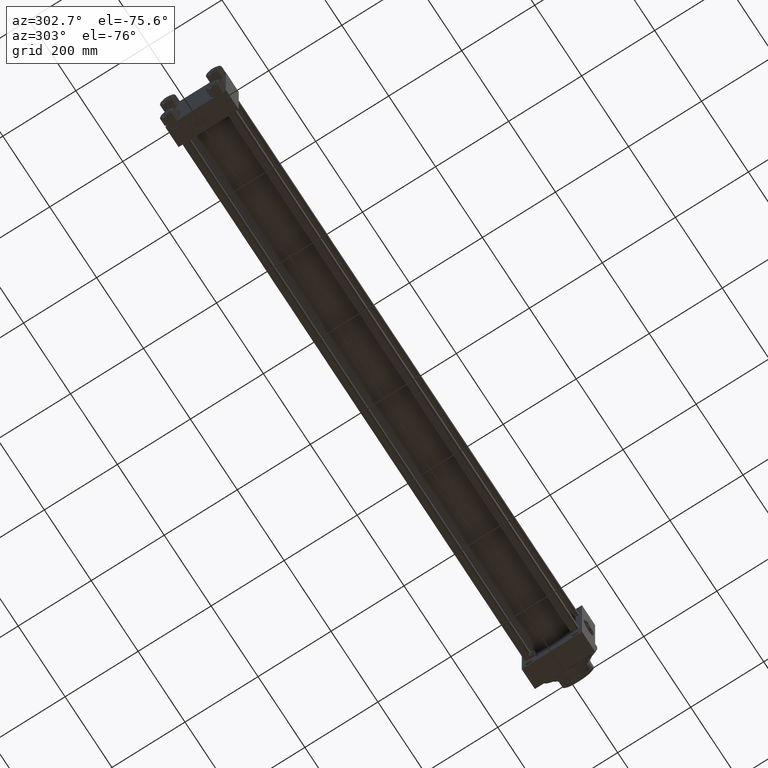
[diagram: clean part render]
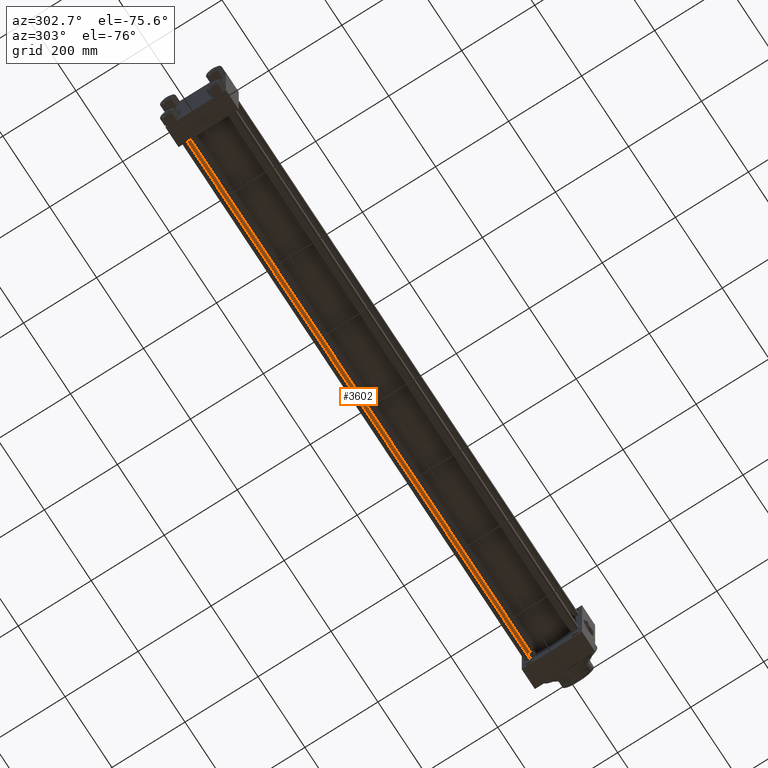
[diagram: same view with one face highlighted and labeled with its STEP entity id]
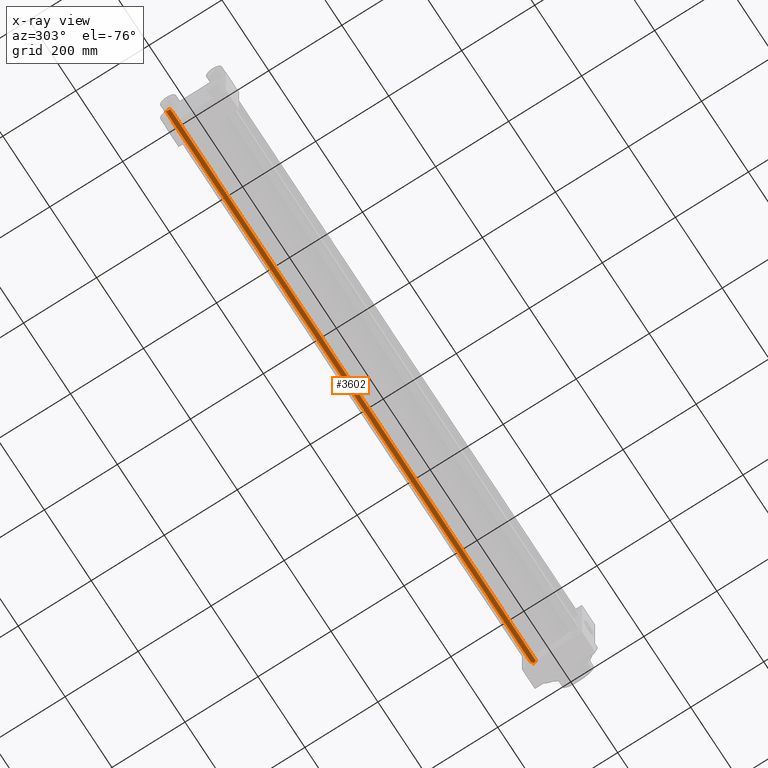
[diagram: x-ray of the same camera — body ghosted, the highlighted face saturated]
A machine part, auxiliary view. The second image highlights one B-rep face of the part: STEP entity #3602.
The next image is the same camera in x-ray: the body ghosted, the highlighted face saturated — about 0% of this face is hidden behind the body in this view.
In plain terms, the highlighted cylindrical surface (edge-blend (fillet) strip) has radius 11 mm, axis along (1, -0, 0).
Its self-contained STEP definition (entity closure, byte-faithful):
#834 = DIRECTION ( 'NONE',  ( -1.000000000000000000, 0.000000000000000000, 0.000000000000000000 ) ) ;
#2675 = VERTEX_POINT ( 'NONE', #30887 ) ;
#3602 = ADVANCED_FACE ( 'NONE', ( #32789 ), #32021, .T. ) ;
#6264 = CARTESIAN_POINT ( 'NONE',  ( 0.000000000000000000, 0.000000000000000000, 0.4999999999997228883 ) ) ;
#6822 = ORIENTED_EDGE ( 'NONE', *, *, #12687, .T. ) ;
#9968 = CIRCLE ( 'NONE', #22344, 11.00000000000000000 ) ;
#11237 = CARTESIAN_POINT ( 'NONE',  ( 11.00000000000000000, 1.347111479062088405E-15, 1559.000000000000000 ) ) ;
#12687 = EDGE_CURVE ( 'NONE', #2675, #45247, #9968, .T. ) ;
#12777 = AXIS2_PLACEMENT_3D ( 'NONE', #47676, #36616, #834 ) ;
#13046 = DIRECTION ( 'NONE',  ( 0.000000000000000000, 0.000000000000000000, -1.000000000000000000 ) ) ;
#14301 = ORIENTED_EDGE ( 'NONE', *, *, #34917, .T. ) ;
#15122 = DIRECTION ( 'NONE',  ( -0.000000000000000000, -0.000000000000000000, -1.000000000000000000 ) ) ;
#19951 = VECTOR ( 'NONE', #15122, 1000.000000000000000 ) ;
#20139 = DIRECTION ( 'NONE',  ( 1.000000000000000000, 0.000000000000000000, 0.000000000000000000 ) ) ;
#21362 = CARTESIAN_POINT ( 'NONE',  ( -11.00000000000000000, 0.000000000000000000, 1558.500000000000000 ) ) ;
#21537 = DIRECTION ( 'NONE',  ( 1.000000000000000000, 0.000000000000000000, 0.000000000000000000 ) ) ;
#22344 = AXIS2_PLACEMENT_3D ( 'NONE', #32886, #13046, #21537 ) ;
#23459 = ORIENTED_EDGE ( 'NONE', *, *, #33417, .F. ) ;
#24063 = CARTESIAN_POINT ( 'NONE',  ( 11.00000000000000000, 1.347111479062088405E-15, 0.4999999999997228883 ) ) ;
#26194 = AXIS2_PLACEMENT_3D ( 'NONE', #6264, #29958, #20139 ) ;
#26966 = DIRECTION ( 'NONE',  ( -0.000000000000000000, -0.000000000000000000, -1.000000000000000000 ) ) ;
#29484 = VERTEX_POINT ( 'NONE', #31348 ) ;
#29958 = DIRECTION ( 'NONE',  ( -0.000000000000000000, -0.000000000000000000, 1.000000000000000000 ) ) ;
#30887 = CARTESIAN_POINT ( 'NONE',  ( 11.00000000000000000, 1.347111479062088405E-15, 1558.500000000000000 ) ) ;
#31348 = CARTESIAN_POINT ( 'NONE',  ( -11.00000000000000000, 0.000000000000000000, 0.4999999999997228883 ) ) ;
#32021 = CYLINDRICAL_SURFACE ( 'NONE', #12777, 11.00000000000000000 ) ;
#32789 = FACE_OUTER_BOUND ( 'NONE', #33769, .T. ) ;
#32886 = CARTESIAN_POINT ( 'NONE',  ( 0.000000000000000000, 0.000000000000000000, 1558.500000000000000 ) ) ;
#33417 = EDGE_CURVE ( 'NONE', #2675, #42283, #46499, .T. ) ;
#33769 = EDGE_LOOP ( 'NONE', ( #23459, #6822, #41462, #14301 ) ) ;
#33935 = LINE ( 'NONE', #39457, #19951 ) ;
#34917 = EDGE_CURVE ( 'NONE', #29484, #42283, #48366, .T. ) ;
#36037 = VECTOR ( 'NONE', #26966, 1000.000000000000000 ) ;
#36616 = DIRECTION ( 'NONE',  ( -0.000000000000000000, -0.000000000000000000, -1.000000000000000000 ) ) ;
#39457 = CARTESIAN_POINT ( 'NONE',  ( -11.00000000000000000, 0.000000000000000000, 1559.000000000000000 ) ) ;
#40470 = EDGE_CURVE ( 'NONE', #45247, #29484, #33935, .T. ) ;
#41462 = ORIENTED_EDGE ( 'NONE', *, *, #40470, .T. ) ;
#42283 = VERTEX_POINT ( 'NONE', #24063 ) ;
#45247 = VERTEX_POINT ( 'NONE', #21362 ) ;
#46499 = LINE ( 'NONE', #11237, #36037 ) ;
#47676 = CARTESIAN_POINT ( 'NONE',  ( 0.000000000000000000, 0.000000000000000000, 1559.000000000000000 ) ) ;
#48366 = CIRCLE ( 'NONE', #26194, 11.00000000000000000 ) ;